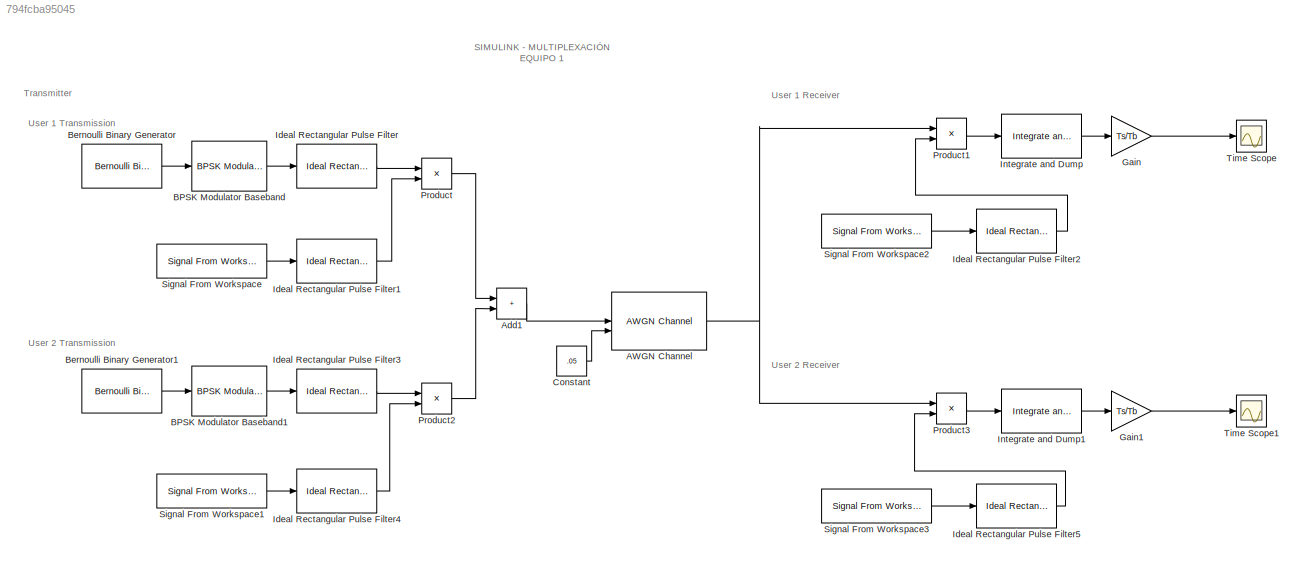
MODEL slx_794fcba95045
KIND model
CONFIG AbsTol = auto
CONFIG EnableMultiTasking = off
CONFIG FixedStep = auto
CONFIG InitFcn = fs = 1e4; % Frecuencia de muestreo\nTs = 1/fs; % Tiempo de muestra\nTb = 0.1; % Tiempo de bit\nTc = 0.0125; % Tiempo de chip\nframeSize = 1000; % Tamaño de cada trama en bloques de fuente
CONFIG MaxStep = auto
CONFIG MinStep = auto
CONFIG RelTol = 1e-3
CONFIG SampleTimeConstraint = Unconstrained
CONFIG SolverName = VariableStepAuto
CONFIG StartTime = 0.0
CONFIG StopTime = 10.0
BLOCK [Reference] AWGN Channel  REF=commchan3/AWGN
Channel
  SourceBlock = commchan3/AWGN\nChannel
  SourceType = AWGN Channel
  UserDataPersistent = on
BLOCK [Sum] Add1
  IconShape = rectangular
BLOCK [Reference] BPSK Modulator Baseband  REF=commdigbbndpm3/BPSK
Modulator
Baseband
  SourceBlock = commdigbbndpm3/BPSK\nModulator\nBaseband
  SourceType = BPSK Modulator Baseband
BLOCK [Reference] BPSK Modulator Baseband1  REF=commdigbbndpm3/BPSK
Modulator
Baseband
  SourceBlock = commdigbbndpm3/BPSK\nModulator\nBaseband
  SourceType = BPSK Modulator Baseband
BLOCK [Reference] Bernoulli Binary Generator  REF=commrandsrc3/Bernoulli Binary
Generator
  SourceBlock = commrandsrc3/Bernoulli Binary\nGenerator
  SourceType = Bernoulli Binary Generator
BLOCK [Reference] Bernoulli Binary Generator1  REF=commrandsrc3/Bernoulli Binary
Generator
  SourceBlock = commrandsrc3/Bernoulli Binary\nGenerator
  SourceType = Bernoulli Binary Generator
BLOCK [Constant] Constant
  Value = .05
BLOCK [Gain] Gain
  Gain = Ts/Tb
BLOCK [Gain] Gain1
  Gain = Ts/Tb
BLOCK [Reference] Ideal Rectangular Pulse Filter  REF=commfilt2/Ideal Rectangular
Pulse Filter
  SourceBlock = commfilt2/Ideal Rectangular\nPulse Filter
  SourceType = Ideal Rectangular Pulse Filter
  UserDataPersistent = on
BLOCK [Reference] Ideal Rectangular Pulse Filter1  REF=commfilt2/Ideal Rectangular
Pulse Filter
  SourceBlock = commfilt2/Ideal Rectangular\nPulse Filter
  SourceType = Ideal Rectangular Pulse Filter
  UserDataPersistent = on
BLOCK [Reference] Ideal Rectangular Pulse Filter2  REF=commfilt2/Ideal Rectangular
Pulse Filter
  SourceBlock = commfilt2/Ideal Rectangular\nPulse Filter
  SourceType = Ideal Rectangular Pulse Filter
  UserDataPersistent = on
BLOCK [Reference] Ideal Rectangular Pulse Filter3  REF=commfilt2/Ideal Rectangular
Pulse Filter
  SourceBlock = commfilt2/Ideal Rectangular\nPulse Filter
  SourceType = Ideal Rectangular Pulse Filter
  UserDataPersistent = on
BLOCK [Reference] Ideal Rectangular Pulse Filter4  REF=commfilt2/Ideal Rectangular
Pulse Filter
  SourceBlock = commfilt2/Ideal Rectangular\nPulse Filter
  SourceType = Ideal Rectangular Pulse Filter
  UserDataPersistent = on
BLOCK [Reference] Ideal Rectangular Pulse Filter5  REF=commfilt2/Ideal Rectangular
Pulse Filter
  SourceBlock = commfilt2/Ideal Rectangular\nPulse Filter
  SourceType = Ideal Rectangular Pulse Filter
  UserDataPersistent = on
BLOCK [Reference] Integrate and Dump  REF=commfilt2/Integrate
and Dump
  SourceBlock = commfilt2/Integrate\nand Dump
  SourceType = Integrate and Dump
BLOCK [Reference] Integrate and Dump1  REF=commfilt2/Integrate
and Dump
  SourceBlock = commfilt2/Integrate\nand Dump
  SourceType = Integrate and Dump
BLOCK [Product] Product
BLOCK [Product] Product1
BLOCK [Product] Product2
BLOCK [Product] Product3
BLOCK [Reference] Signal From Workspace  REF=dspsrcs4/Signal From
Workspace
  SourceBlock = dspsrcs4/Signal From\nWorkspace
  SourceType = Signal From Workspace
BLOCK [Reference] Signal From Workspace1  REF=dspsrcs4/Signal From
Workspace
  SourceBlock = dspsrcs4/Signal From\nWorkspace
  SourceType = Signal From Workspace
BLOCK [Reference] Signal From Workspace2  REF=dspsrcs4/Signal From
Workspace
  SourceBlock = dspsrcs4/Signal From\nWorkspace
  SourceType = Signal From Workspace
BLOCK [Reference] Signal From Workspace3  REF=dspsrcs4/Signal From
Workspace
  SourceBlock = dspsrcs4/Signal From\nWorkspace
  SourceType = Signal From Workspace
BLOCK [Scope] Time Scope
  DefaultConfigurationName = spbscopes.TimeScopeBlockCfg
  Floating = off
  NumInputPorts = 1
  ScopeSpecificationString = spbscopes.TimeScopeBlockCfg('CurrentConfiguration', extmgr.ConfigurationSet(extmgr.Configuration('Core','General UI',true),extmgr.Configuration('Core','Source UI',true),extmgr.Configuration('Sources','WiredSimulink',true),extmgr.Configuration('Visuals','Time Domain',true,'DisplayPropertyDefaults',struct('MinYLimReal','-1.26152','MaxYLimReal','1.26388','YLabelReal','Amplitude','MinYLimMag','0.00000...<+1459ch>
  UserDataPersistent = on
BLOCK [Scope] Time Scope1
  DefaultConfigurationName = spbscopes.TimeScopeBlockCfg
  Floating = off
  NumInputPorts = 1
  ScopeSpecificationString = spbscopes.TimeScopeBlockCfg('CurrentConfiguration', extmgr.ConfigurationSet(extmgr.Configuration('Core','General UI',true),extmgr.Configuration('Core','Source UI',true),extmgr.Configuration('Sources','WiredSimulink',true,'DataLoggingVariableName','ScopeData1'),extmgr.Configuration('Visuals','Time Domain',true,'DisplayPropertyDefaults',struct('MinYLimReal','-1.26226','MaxYLimReal','1.26633','YLabel...<+1500ch>
  UserDataPersistent = on
ANNOTATION (root): SIMULINK - MULTIPLEXACIÓN EQUIPO 1
ANNOTATION (root): Transmitter
ANNOTATION (root): User 1 Receiver
ANNOTATION (root): User 1 Transmission
ANNOTATION (root): User 2 Receiver
ANNOTATION (root): User 2 Transmission
NET AWGN Channel:1 -> Product1:1, Product3:1
LINE Add1:1 -> AWGN Channel:1
LINE BPSK Modulator Baseband1:1 -> Ideal Rectangular Pulse Filter3:1
LINE BPSK Modulator Baseband:1 -> Ideal Rectangular Pulse Filter:1
LINE Bernoulli Binary Generator1:1 -> BPSK Modulator Baseband1:1
LINE Bernoulli Binary Generator:1 -> BPSK Modulator Baseband:1
LINE Constant:1 -> AWGN Channel:2
LINE Gain1:1 -> Time Scope1:1
LINE Gain:1 -> Time Scope:1
LINE Ideal Rectangular Pulse Filter1:1 -> Product:2
LINE Ideal Rectangular Pulse Filter2:1 -> Product1:2
LINE Ideal Rectangular Pulse Filter3:1 -> Product2:1
LINE Ideal Rectangular Pulse Filter4:1 -> Product2:2
LINE Ideal Rectangular Pulse Filter5:1 -> Product3:2
LINE Ideal Rectangular Pulse Filter:1 -> Product:1
LINE Integrate and Dump1:1 -> Gain1:1
LINE Integrate and Dump:1 -> Gain:1
LINE Product1:1 -> Integrate and Dump:1
LINE Product2:1 -> Add1:2
LINE Product3:1 -> Integrate and Dump1:1
LINE Product:1 -> Add1:1
LINE Signal From Workspace1:1 -> Ideal Rectangular Pulse Filter4:1
LINE Signal From Workspace2:1 -> Ideal Rectangular Pulse Filter2:1
LINE Signal From Workspace3:1 -> Ideal Rectangular Pulse Filter5:1
LINE Signal From Workspace:1 -> Ideal Rectangular Pulse Filter1:1
note: NET lines group one-source signal fan-out (src -> all destinations, sorted); 1:1 wires keep LINE
